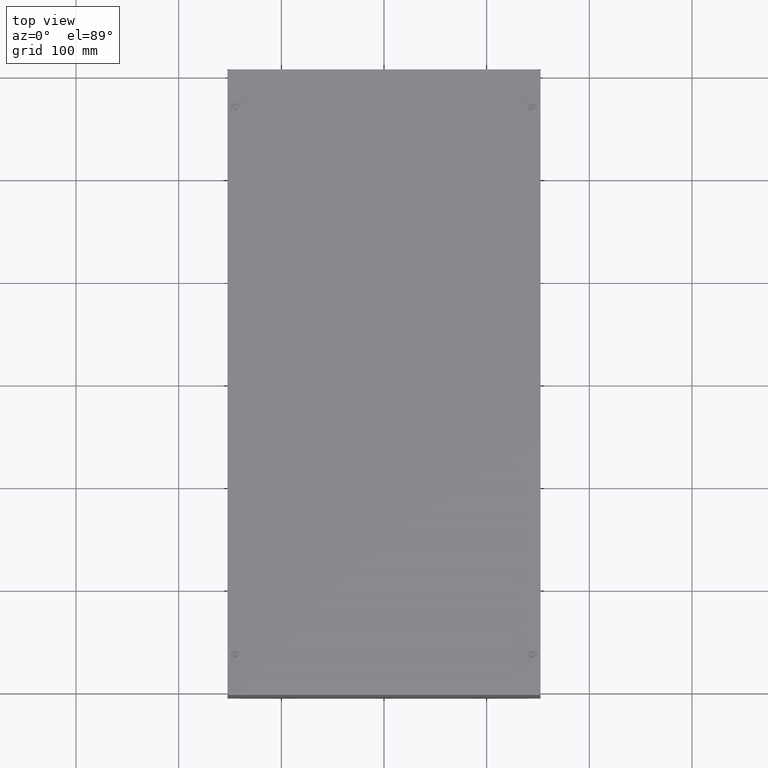
[diagram: clean part render]
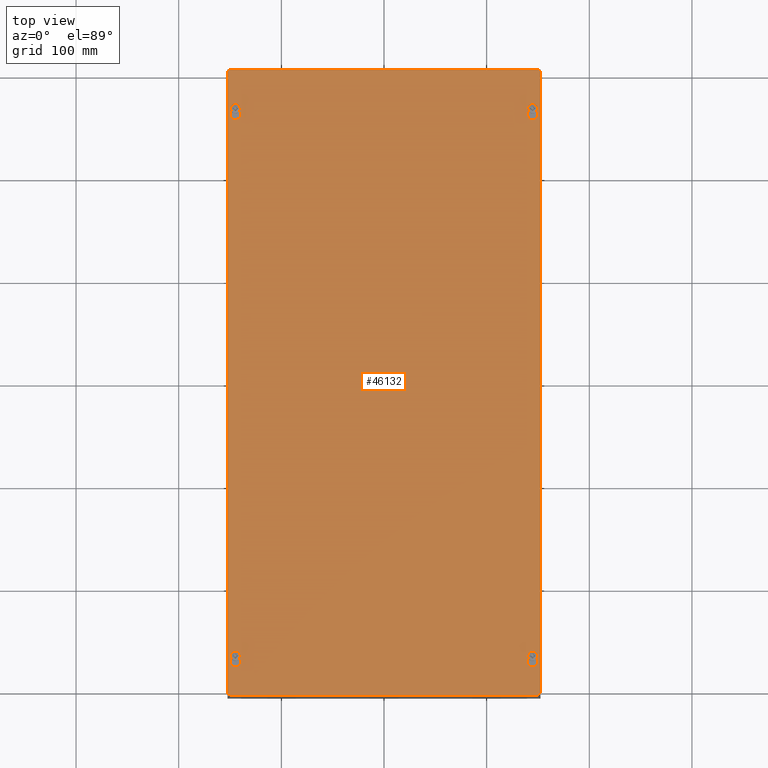
[diagram: same view with one face highlighted and labeled with its STEP entity id]
A machine part, top view. The second image highlights one B-rep face of the part: STEP entity #46132.
In plain terms, the highlighted planar face has unit normal (0, -0, 1).
Its self-contained STEP definition (entity closure, byte-faithful):
#4106=FACE_BOUND('',#8780,.T.);
#4107=FACE_BOUND('',#8781,.T.);
#4108=FACE_BOUND('',#8782,.T.);
#4109=FACE_BOUND('',#8783,.T.);
#4516=PLANE('',#48959);
#6249=FACE_OUTER_BOUND('',#8779,.T.);
#8779=EDGE_LOOP('',(#33678,#33679,#33680,#33681,#33682,#33683,#33684,#33685));
#8780=EDGE_LOOP('',(#33686,#33687,#33688,#33689));
#8781=EDGE_LOOP('',(#33690,#33691,#33692,#33693));
#8782=EDGE_LOOP('',(#33694,#33695,#33696,#33697));
#8783=EDGE_LOOP('',(#33698,#33699,#33700,#33701));
#11712=LINE('',#61742,#16637);
#11716=LINE('',#61752,#16641);
#11720=LINE('',#61766,#16645);
#11724=LINE('',#61776,#16649);
#11728=LINE('',#61790,#16653);
#11732=LINE('',#61800,#16657);
#11736=LINE('',#61814,#16661);
#11740=LINE('',#61824,#16665);
#11745=LINE('',#61839,#16670);
#11751=LINE('',#61860,#16676);
#11755=LINE('',#61871,#16680);
#11756=LINE('',#61873,#16681);
#16637=VECTOR('',#51920,0.393700787401575);
#16641=VECTOR('',#51932,0.393700787401575);
#16645=VECTOR('',#51944,0.393700787401575);
#16649=VECTOR('',#51956,0.393700787401575);
#16653=VECTOR('',#51968,0.393700787401575);
#16657=VECTOR('',#51980,0.393700787401575);
#16661=VECTOR('',#51992,0.393700787401575);
#16665=VECTOR('',#52004,0.393700787401575);
#16670=VECTOR('',#52017,0.393700787401575);
#16676=VECTOR('',#52037,0.393700787401575);
#16680=VECTOR('',#52051,0.393700787401575);
#16681=VECTOR('',#52054,0.393700787401575);
#21218=CIRCLE('',#48912,0.203);
#21220=CIRCLE('',#48916,0.117);
#21222=CIRCLE('',#48920,0.203);
#21224=CIRCLE('',#48924,0.117);
#21226=CIRCLE('',#48928,0.203);
#21228=CIRCLE('',#48932,0.117);
#21230=CIRCLE('',#48936,0.203);
#21232=CIRCLE('',#48940,0.117);
#21233=CIRCLE('',#48943,0.125);
#21238=CIRCLE('',#48951,0.125);
#21239=CIRCLE('',#48954,0.125);
#21240=CIRCLE('',#48956,0.125);
#21779=VERTEX_POINT('',#61730);
#21782=VERTEX_POINT('',#61735);
#21784=VERTEX_POINT('',#61741);
#21786=VERTEX_POINT('',#61747);
#21787=VERTEX_POINT('',#61754);
#21790=VERTEX_POINT('',#61759);
#21792=VERTEX_POINT('',#61765);
#21794=VERTEX_POINT('',#61771);
#21795=VERTEX_POINT('',#61778);
#21798=VERTEX_POINT('',#61783);
#21800=VERTEX_POINT('',#61789);
#21802=VERTEX_POINT('',#61795);
#21803=VERTEX_POINT('',#61802);
#21806=VERTEX_POINT('',#61807);
#21808=VERTEX_POINT('',#61813);
#21810=VERTEX_POINT('',#61819);
#21811=VERTEX_POINT('',#61826);
#21812=VERTEX_POINT('',#61827);
#21816=VERTEX_POINT('',#61837);
#21822=VERTEX_POINT('',#61853);
#21823=VERTEX_POINT('',#61854);
#21824=VERTEX_POINT('',#61859);
#21825=VERTEX_POINT('',#61863);
#21826=VERTEX_POINT('',#61867);
#26373=EDGE_CURVE('',#21779,#21782,#21218,.T.);
#26375=EDGE_CURVE('',#21784,#21779,#11712,.T.);
#26378=EDGE_CURVE('',#21786,#21784,#21220,.T.);
#26381=EDGE_CURVE('',#21782,#21786,#11716,.T.);
#26385=EDGE_CURVE('',#21787,#21790,#21222,.T.);
#26387=EDGE_CURVE('',#21792,#21787,#11720,.T.);
#26390=EDGE_CURVE('',#21794,#21792,#21224,.T.);
#26393=EDGE_CURVE('',#21790,#21794,#11724,.T.);
#26397=EDGE_CURVE('',#21795,#21798,#21226,.T.);
#26399=EDGE_CURVE('',#21800,#21795,#11728,.T.);
#26402=EDGE_CURVE('',#21802,#21800,#21228,.T.);
#26405=EDGE_CURVE('',#21798,#21802,#11732,.T.);
#26409=EDGE_CURVE('',#21803,#21806,#21230,.T.);
#26411=EDGE_CURVE('',#21808,#21803,#11736,.T.);
#26414=EDGE_CURVE('',#21810,#21808,#21232,.T.);
#26417=EDGE_CURVE('',#21806,#21810,#11740,.T.);
#26418=EDGE_CURVE('',#21811,#21812,#21233,.T.);
#26424=EDGE_CURVE('',#21816,#21811,#11745,.T.);
#26431=EDGE_CURVE('',#21822,#21823,#21238,.T.);
#26434=EDGE_CURVE('',#21823,#21824,#11751,.T.);
#26436=EDGE_CURVE('',#21824,#21825,#21239,.T.);
#26438=EDGE_CURVE('',#21826,#21816,#21240,.T.);
#26440=EDGE_CURVE('',#21825,#21826,#11755,.T.);
#26441=EDGE_CURVE('',#21812,#21822,#11756,.T.);
#33678=ORIENTED_EDGE('',*,*,#26418,.F.);
#33679=ORIENTED_EDGE('',*,*,#26424,.F.);
#33680=ORIENTED_EDGE('',*,*,#26438,.F.);
#33681=ORIENTED_EDGE('',*,*,#26440,.F.);
#33682=ORIENTED_EDGE('',*,*,#26436,.F.);
#33683=ORIENTED_EDGE('',*,*,#26434,.F.);
#33684=ORIENTED_EDGE('',*,*,#26431,.F.);
#33685=ORIENTED_EDGE('',*,*,#26441,.F.);
#33686=ORIENTED_EDGE('',*,*,#26373,.T.);
#33687=ORIENTED_EDGE('',*,*,#26381,.T.);
#33688=ORIENTED_EDGE('',*,*,#26378,.T.);
#33689=ORIENTED_EDGE('',*,*,#26375,.T.);
#33690=ORIENTED_EDGE('',*,*,#26385,.T.);
#33691=ORIENTED_EDGE('',*,*,#26393,.T.);
#33692=ORIENTED_EDGE('',*,*,#26390,.T.);
#33693=ORIENTED_EDGE('',*,*,#26387,.T.);
#33694=ORIENTED_EDGE('',*,*,#26397,.T.);
#33695=ORIENTED_EDGE('',*,*,#26405,.T.);
#33696=ORIENTED_EDGE('',*,*,#26402,.T.);
#33697=ORIENTED_EDGE('',*,*,#26399,.T.);
#33698=ORIENTED_EDGE('',*,*,#26409,.T.);
#33699=ORIENTED_EDGE('',*,*,#26417,.T.);
#33700=ORIENTED_EDGE('',*,*,#26414,.T.);
#33701=ORIENTED_EDGE('',*,*,#26411,.T.);
#46132=ADVANCED_FACE('',(#6249,#4106,#4107,#4108,#4109),#4516,.T.);
#48912=AXIS2_PLACEMENT_3D('',#61737,#51915,#51916);
#48916=AXIS2_PLACEMENT_3D('',#61748,#51926,#51927);
#48920=AXIS2_PLACEMENT_3D('',#61761,#51939,#51940);
#48924=AXIS2_PLACEMENT_3D('',#61772,#51950,#51951);
#48928=AXIS2_PLACEMENT_3D('',#61785,#51963,#51964);
#48932=AXIS2_PLACEMENT_3D('',#61796,#51974,#51975);
#48936=AXIS2_PLACEMENT_3D('',#61809,#51987,#51988);
#48940=AXIS2_PLACEMENT_3D('',#61820,#51998,#51999);
#48943=AXIS2_PLACEMENT_3D('',#61828,#52007,#52008);
#48951=AXIS2_PLACEMENT_3D('',#61855,#52031,#52032);
#48954=AXIS2_PLACEMENT_3D('',#61864,#52041,#52042);
#48956=AXIS2_PLACEMENT_3D('',#61868,#52046,#52047);
#48959=AXIS2_PLACEMENT_3D('',#61874,#52055,#52056);
#51915=DIRECTION('center_axis',(0.,0.,-1.));
#51916=DIRECTION('ref_axis',(1.,0.,0.));
#51920=DIRECTION('',(0.,-1.,0.));
#51926=DIRECTION('center_axis',(0.,0.,-1.));
#51927=DIRECTION('ref_axis',(1.,0.,0.));
#51932=DIRECTION('',(0.,1.,0.));
#51939=DIRECTION('center_axis',(0.,0.,-1.));
#51940=DIRECTION('ref_axis',(1.,0.,0.));
#51944=DIRECTION('',(0.,-1.,0.));
#51950=DIRECTION('center_axis',(0.,0.,-1.));
#51951=DIRECTION('ref_axis',(1.,0.,0.));
#51956=DIRECTION('',(0.,1.,0.));
#51963=DIRECTION('center_axis',(0.,0.,-1.));
#51964=DIRECTION('ref_axis',(1.,0.,0.));
#51968=DIRECTION('',(-7.79019077557887E-16,-1.,0.));
#51974=DIRECTION('center_axis',(0.,0.,-1.));
#51975=DIRECTION('ref_axis',(1.,0.,0.));
#51980=DIRECTION('',(-3.89509538778924E-16,1.,0.));
#51987=DIRECTION('center_axis',(0.,0.,-1.));
#51988=DIRECTION('ref_axis',(1.,0.,0.));
#51992=DIRECTION('',(0.,-1.,0.));
#51998=DIRECTION('center_axis',(0.,0.,-1.));
#51999=DIRECTION('ref_axis',(1.,0.,0.));
#52004=DIRECTION('',(0.,1.,0.));
#52007=DIRECTION('center_axis',(0.,0.,-1.));
#52008=DIRECTION('ref_axis',(0.707106781186552,0.707106781186543,0.));
#52017=DIRECTION('',(1.,0.,0.));
#52031=DIRECTION('center_axis',(0.,0.,-1.));
#52032=DIRECTION('ref_axis',(0.707106781186552,-0.707106781186543,0.));
#52037=DIRECTION('',(-1.,0.,0.));
#52041=DIRECTION('center_axis',(0.,0.,-1.));
#52042=DIRECTION('ref_axis',(-0.707106781186552,-0.707106781186543,0.));
#52046=DIRECTION('center_axis',(0.,0.,-1.));
#52047=DIRECTION('ref_axis',(-0.707106781186552,0.707106781186543,0.));
#52051=DIRECTION('',(0.,1.,0.));
#52054=DIRECTION('',(0.,-1.,0.));
#52055=DIRECTION('center_axis',(0.,0.,1.));
#52056=DIRECTION('ref_axis',(1.,0.,0.));
#61730=CARTESIAN_POINT('',(-5.583,10.4438915308266,0.053));
#61735=CARTESIAN_POINT('',(-5.817,10.4438915308266,0.053));
#61737=CARTESIAN_POINT('Origin',(-5.7,10.278,0.053));
#61741=CARTESIAN_POINT('',(-5.583,10.5,0.053));
#61742=CARTESIAN_POINT('',(-5.583,5.22194576541331,0.053));
#61747=CARTESIAN_POINT('',(-5.817,10.5,0.053));
#61748=CARTESIAN_POINT('Origin',(-5.7,10.5,0.053));
#61752=CARTESIAN_POINT('',(-5.817,5.25,0.053));
#61754=CARTESIAN_POINT('',(5.817,10.4438915308266,0.053));
#61759=CARTESIAN_POINT('',(5.583,10.4438915308266,0.053));
#61761=CARTESIAN_POINT('Origin',(5.7,10.278,0.053));
#61765=CARTESIAN_POINT('',(5.817,10.5,0.053));
#61766=CARTESIAN_POINT('',(5.817,5.22194576541331,0.053));
#61771=CARTESIAN_POINT('',(5.583,10.5,0.053));
#61772=CARTESIAN_POINT('Origin',(5.7,10.5,0.053));
#61776=CARTESIAN_POINT('',(5.583,5.25,0.053));
#61778=CARTESIAN_POINT('',(-5.583,-10.5561084691734,0.053));
#61783=CARTESIAN_POINT('',(-5.817,-10.5561084691734,0.053));
#61785=CARTESIAN_POINT('Origin',(-5.7,-10.722,0.053));
#61789=CARTESIAN_POINT('',(-5.583,-10.5,0.053));
#61790=CARTESIAN_POINT('',(-5.583,-5.27805423458669,0.053));
#61795=CARTESIAN_POINT('',(-5.817,-10.5,0.053));
#61796=CARTESIAN_POINT('Origin',(-5.7,-10.5,0.053));
#61800=CARTESIAN_POINT('',(-5.817,-5.25,0.053));
#61802=CARTESIAN_POINT('',(5.817,-10.5561084691734,0.053));
#61807=CARTESIAN_POINT('',(5.583,-10.5561084691734,0.053));
#61809=CARTESIAN_POINT('Origin',(5.7,-10.722,0.053));
#61813=CARTESIAN_POINT('',(5.817,-10.5,0.053));
#61814=CARTESIAN_POINT('',(5.817,-5.27805423458669,0.053));
#61819=CARTESIAN_POINT('',(5.583,-10.5,0.053));
#61820=CARTESIAN_POINT('Origin',(5.7,-10.5,0.053));
#61824=CARTESIAN_POINT('',(5.583,-5.25,0.053));
#61826=CARTESIAN_POINT('',(5.875,12.,0.053));
#61827=CARTESIAN_POINT('',(6.,11.875,0.053));
#61828=CARTESIAN_POINT('Origin',(5.875,11.875,0.053));
#61837=CARTESIAN_POINT('',(-5.875,12.,0.053));
#61839=CARTESIAN_POINT('',(6.,12.,0.053));
#61853=CARTESIAN_POINT('',(6.,-11.875,0.053));
#61854=CARTESIAN_POINT('',(5.875,-12.,0.053));
#61855=CARTESIAN_POINT('Origin',(5.875,-11.875,0.053));
#61859=CARTESIAN_POINT('',(-5.875,-12.,0.053));
#61860=CARTESIAN_POINT('',(-6.,-12.,0.053));
#61863=CARTESIAN_POINT('',(-6.,-11.875,0.053));
#61864=CARTESIAN_POINT('Origin',(-5.875,-11.875,0.053));
#61867=CARTESIAN_POINT('',(-6.,11.875,0.053));
#61868=CARTESIAN_POINT('Origin',(-5.875,11.875,0.053));
#61871=CARTESIAN_POINT('',(-6.,12.,0.053));
#61873=CARTESIAN_POINT('',(6.,-12.,0.053));
#61874=CARTESIAN_POINT('Origin',(-1.04902962956708E-15,0.,0.053));